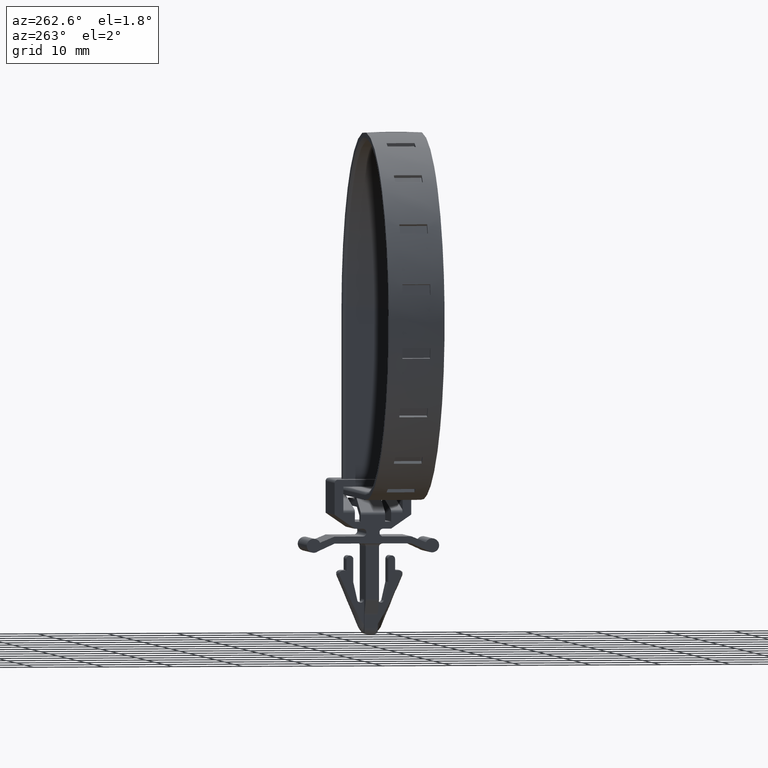
[diagram: clean part render]
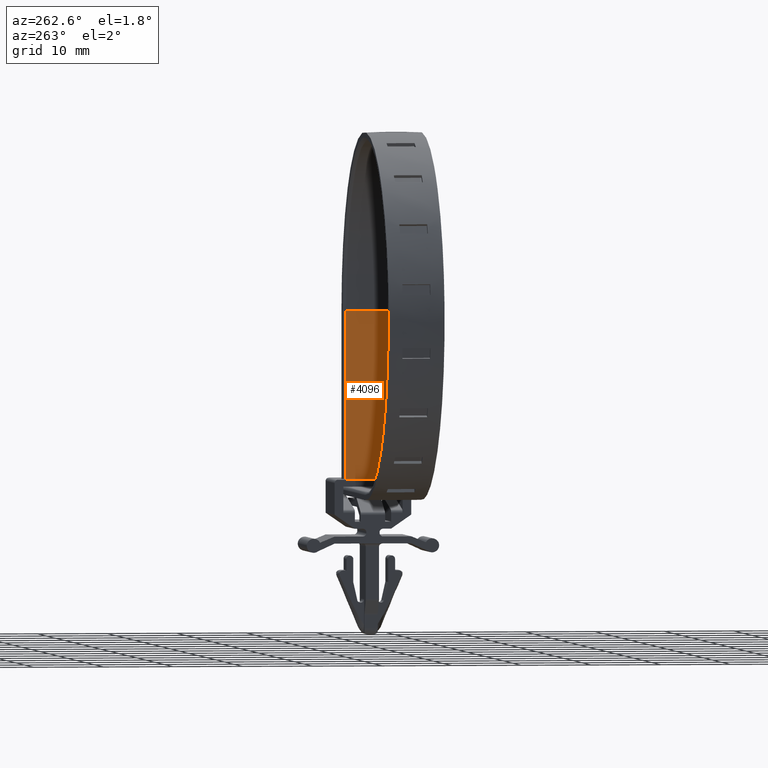
[diagram: same view with one face highlighted and labeled with its STEP entity id]
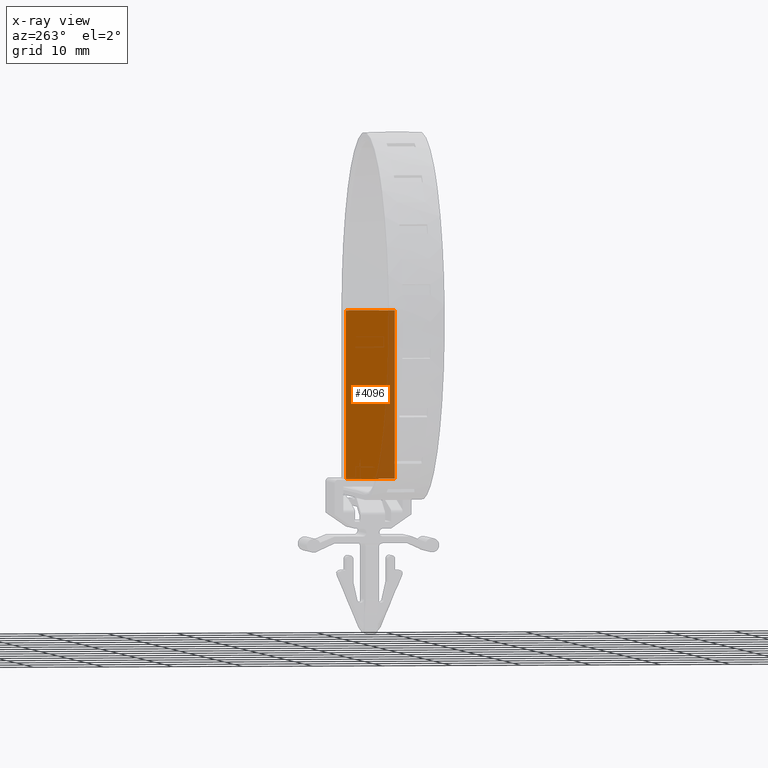
[diagram: x-ray of the same camera — body ghosted, the highlighted face saturated]
A machine part, auxiliary view. The second image highlights one B-rep face of the part: STEP entity #4096.
The next image is the same camera in x-ray: the body ghosted, the highlighted face saturated — about 21% of this face is hidden behind the body in this view.
In plain terms, the highlighted face is a freeform B-spline surface patch.
Its self-contained STEP definition (entity closure, byte-faithful):
#620=CARTESIAN_POINT('',(10.0,3.500000000000060,-9.0));
#621=VERTEX_POINT('',#620);
#635=CARTESIAN_POINT('',(10.0,3.500000000000060,15.0));
#636=VERTEX_POINT('',#635);
#637=CARTESIAN_POINT('',(10.0,3.500000000000060,15.0));
#638=CARTESIAN_POINT('',(10.0,3.500000000000060,-9.0));
#639=QUASI_UNIFORM_CURVE('',1,(#637,#638),.UNSPECIFIED.,.F.,.U.);
#640=EDGE_CURVE('',#636,#621,#639,.T.);
#1093=CARTESIAN_POINT('',(10.0,-3.499999999999950,15.0));
#1094=VERTEX_POINT('',#1093);
#1241=CARTESIAN_POINT('',(10.0,-3.499999999999950,-9.0));
#1242=VERTEX_POINT('',#1241);
#1259=CARTESIAN_POINT('',(10.0,-3.499999999999950,-9.0));
#1260=CARTESIAN_POINT('',(10.0,-3.499999999999950,15.0));
#1261=QUASI_UNIFORM_CURVE('',1,(#1259,#1260),.UNSPECIFIED.,.F.,.U.);
#1262=EDGE_CURVE('',#1242,#1094,#1261,.T.);
#3386=CARTESIAN_POINT('',(10.0,3.500000000000060,15.0));
#3387=CARTESIAN_POINT('',(10.0,-3.499999999999950,15.0));
#3388=QUASI_UNIFORM_CURVE('',1,(#3386,#3387),.UNSPECIFIED.,.F.,.U.);
#3389=EDGE_CURVE('',#636,#1094,#3388,.T.);
#3403=CARTESIAN_POINT('',(10.0,-1.250000000000000,-9.000005499999885));
#3404=VERTEX_POINT('',#3403);
#3423=CARTESIAN_POINT('',(10.0,-1.250000000000000,-9.000005499999885));
#3424=CARTESIAN_POINT('',(10.0,-3.499999999999950,-9.0));
#3425=QUASI_UNIFORM_CURVE('',1,(#3423,#3424),.UNSPECIFIED.,.F.,.U.);
#3426=EDGE_CURVE('',#3404,#1242,#3425,.T.);
#3884=CARTESIAN_POINT('',(10.0,1.250000000000000,-9.000005499999885));
#3885=VERTEX_POINT('',#3884);
#3891=CARTESIAN_POINT('',(10.0,3.500000000000060,-9.0));
#3892=CARTESIAN_POINT('',(10.0,1.250000000000000,-9.000005499999885));
#3893=QUASI_UNIFORM_CURVE('',1,(#3891,#3892),.UNSPECIFIED.,.F.,.U.);
#3894=EDGE_CURVE('',#621,#3885,#3893,.T.);
#4079=CARTESIAN_POINT('',(10.0,-3.849649986432593,-10.198805953503090));
#4080=CARTESIAN_POINT('',(10.0,-3.849649986432593,16.198800882656759));
#4081=CARTESIAN_POINT('',(10.0,3.849650174187334,-10.198805953503090));
#4082=CARTESIAN_POINT('',(10.0,3.849650174187334,16.198800882656759));
#4083=B_SPLINE_SURFACE_WITH_KNOTS('',1,1,((#4079,#4081),(#4080,#4082)),.UNSPECIFIED.,.F.,.F.,.U.,(2,2),(2,2),(0.0,26.397606836159849),(0.0,7.699300160619926),.UNSPECIFIED.);
#4084=ORIENTED_EDGE('',*,*,#3426,.T.);
#4085=ORIENTED_EDGE('',*,*,#1262,.T.);
#4086=ORIENTED_EDGE('',*,*,#3389,.F.);
#4087=ORIENTED_EDGE('',*,*,#640,.T.);
#4088=ORIENTED_EDGE('',*,*,#3894,.T.);
#4089=CARTESIAN_POINT('',(10.0,-1.250000000000000,-9.000005499999885));
#4090=CARTESIAN_POINT('',(10.0,1.250000000000000,-9.000005499999885));
#4091=QUASI_UNIFORM_CURVE('',1,(#4089,#4090),.UNSPECIFIED.,.F.,.U.);
#4092=EDGE_CURVE('',#3404,#3885,#4091,.T.);
#4093=ORIENTED_EDGE('',*,*,#4092,.F.);
#4094=EDGE_LOOP('',(#4084,#4085,#4086,#4087,#4088,#4093));
#4095=FACE_OUTER_BOUND('',#4094,.T.);
#4096=ADVANCED_FACE('',(#4095),#4083,.T.);